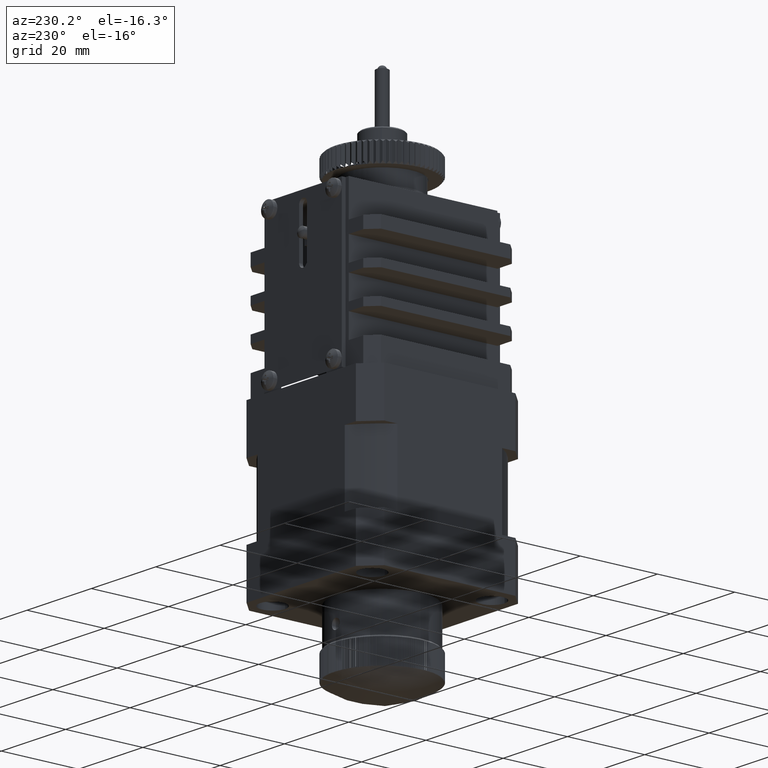
[diagram: clean part render]
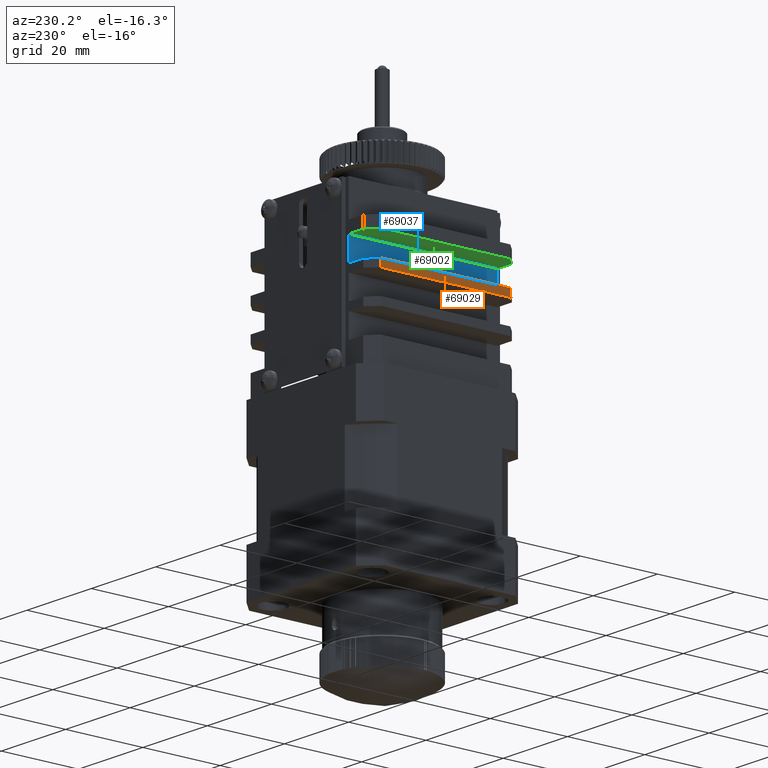
[diagram: same view with three faces highlighted in distinct colors, each labeled with its STEP entity id]
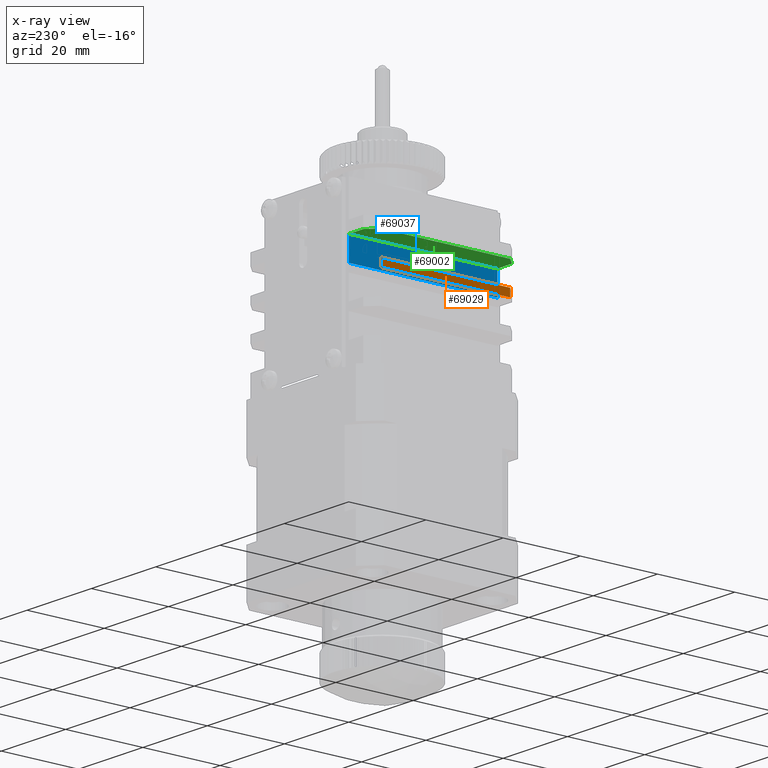
[diagram: x-ray of the same camera — body ghosted, the three highlighted faces saturated]
A machine part, auxiliary view with three faces highlighted in distinct colors.
The next image is the same camera in x-ray (body ghosted, the three faces saturated) — at least one of them is partly hidden behind the body in this view.
Their STEP definitions:

[orange] entity #69029 — the highlighted planar face has unit normal (1, 0, -0).
#68939 = ORIENTED_EDGE ( 'NONE', *, *, #68974, .T. ) ;
#68940 = ORIENTED_EDGE ( 'NONE', *, *, #68948, .T. ) ;
#68942 = VERTEX_POINT ( 'NONE', #69530 ) ;
#68947 = VERTEX_POINT ( 'NONE', #69519 ) ;
#68948 = EDGE_CURVE ( 'NONE', #69051, #68942, #69515, .T. ) ;
#68949 = ORIENTED_EDGE ( 'NONE', *, *, #68961, .T. ) ;
#68952 = EDGE_CURVE ( 'NONE', #68954, #69051, #69506, .T. ) ;
#68954 = VERTEX_POINT ( 'NONE', #69639 ) ;
#68959 = EDGE_LOOP ( 'NONE', ( #68940, #68949, #68939, #69039 ) ) ;
#68961 = EDGE_CURVE ( 'NONE', #68942, #68947, #69631, .T. ) ;
#68974 = EDGE_CURVE ( 'NONE', #68947, #68954, #69685, .T. ) ;
#69029 = ADVANCED_FACE ( 'NONE', ( #70009 ), #70098, .F. ) ;
#69039 = ORIENTED_EDGE ( 'NONE', *, *, #68952, .T. ) ;
#69051 = VERTEX_POINT ( 'NONE', #70234 ) ;
#69503 = DIRECTION ( 'NONE',  ( -1.648888457230421600E-016, 1.000000000000000000, 1.224606353822377800E-016 ) ) ;
#69505 = CARTESIAN_POINT ( 'NONE',  ( -2.744648751455422500, -1.558363746537848100, 0.6096038195100800200 ) ) ;
#69506 = LINE ( 'NONE', #69505, #69641 ) ;
#69510 = DIRECTION ( 'NONE',  ( -2.550043509685906900E-016, 1.224606353822377300E-016, -1.000000000000000000 ) ) ;
#69512 = VECTOR ( 'NONE', #69510, 39.37007874015748100 ) ;
#69513 = CARTESIAN_POINT ( 'NONE',  ( -2.744648751455423000, -0.1410409118921788800, -0.2565379127733842800 ) ) ;
#69515 = LINE ( 'NONE', #69513, #69512 ) ;
#69519 = CARTESIAN_POINT ( 'NONE',  ( -2.744648751455423000, -1.459938549687454400, 0.5308636620297649800 ) ) ;
#69530 = CARTESIAN_POINT ( 'NONE',  ( -2.744648751455423000, -0.1410409118921791500, 0.5308636620297652000 ) ) ;
#69627 = DIRECTION ( 'NONE',  ( 1.648888457230421600E-016, -1.000000000000000000, -1.224606353822377800E-016 ) ) ;
#69629 = VECTOR ( 'NONE', #69627, 39.37007874015748100 ) ;
#69630 = CARTESIAN_POINT ( 'NONE',  ( -2.744648751455422500, -1.558363746537848100, 0.5308636620297649800 ) ) ;
#69631 = LINE ( 'NONE', #69630, #69629 ) ;
#69639 = CARTESIAN_POINT ( 'NONE',  ( -2.744648751455423000, -1.459938549687454400, 0.6096038195100800200 ) ) ;
#69641 = VECTOR ( 'NONE', #69503, 39.37007874015748100 ) ;
#69680 = DIRECTION ( 'NONE',  ( 2.550043509685906900E-016, -1.224606353822377300E-016, 1.000000000000000000 ) ) ;
#69681 = VECTOR ( 'NONE', #69680, 39.37007874015748100 ) ;
#69683 = CARTESIAN_POINT ( 'NONE',  ( -2.744648751455423000, -1.459938549687454400, -0.2565379127733847800 ) ) ;
#69685 = LINE ( 'NONE', #69683, #69681 ) ;
#70009 = FACE_OUTER_BOUND ( 'NONE', #68959, .T. ) ;
#70089 = DIRECTION ( 'NONE',  ( 1.648888457230421600E-016, -1.000000000000000000, -1.224606353822377800E-016 ) ) ;
#70090 = DIRECTION ( 'NONE',  ( 1.000000000000000000, 1.648888457230421900E-016, -2.550043509685906400E-016 ) ) ;
#70092 = CARTESIAN_POINT ( 'NONE',  ( -2.744648751455423000, -1.558363746537847900, -0.2565379127733847800 ) ) ;
#70093 = AXIS2_PLACEMENT_3D ( 'NONE', #70092, #70090, #70089 ) ;
#70098 = PLANE ( 'NONE',  #70093 ) ;
#70234 = CARTESIAN_POINT ( 'NONE',  ( -2.744648751455423000, -0.1410409118921791500, 0.6096038195100800200 ) ) ;

[blue] entity #69037 — the highlighted planar face has unit normal (1, 0, -0).
#68907 = EDGE_CURVE ( 'NONE', #68908, #68915, #69498, .T. ) ;
#68908 = VERTEX_POINT ( 'NONE', #69490 ) ;
#68915 = VERTEX_POINT ( 'NONE', #69475 ) ;
#68938 = VERTEX_POINT ( 'NONE', #69532 ) ;
#68955 = ORIENTED_EDGE ( 'NONE', *, *, #69027, .T. ) ;
#68956 = VERTEX_POINT ( 'NONE', #69636 ) ;
#68966 = ORIENTED_EDGE ( 'NONE', *, *, #68968, .F. ) ;
#68968 = EDGE_CURVE ( 'NONE', #68908, #68938, #69612, .T. ) ;
#68988 = EDGE_LOOP ( 'NONE', ( #68955, #69040, #68966, #69059 ) ) ;
#69027 = EDGE_CURVE ( 'NONE', #68915, #68956, #70017, .T. ) ;
#69037 = ADVANCED_FACE ( 'NONE', ( #70063 ), #70148, .F. ) ;
#69040 = ORIENTED_EDGE ( 'NONE', *, *, #69042, .F. ) ;
#69042 = EDGE_CURVE ( 'NONE', #68938, #68956, #70133, .T. ) ;
#69059 = ORIENTED_EDGE ( 'NONE', *, *, #68907, .T. ) ;
#69475 = CARTESIAN_POINT ( 'NONE',  ( -2.469058200274320200, -0.04261571504178535800, 0.8458242919510251500 ) ) ;
#69490 = CARTESIAN_POINT ( 'NONE',  ( -2.469058200274319800, -1.558363746537848100, 0.8458242919510248200 ) ) ;
#69492 = DIRECTION ( 'NONE',  ( -2.550043509685905900E-016, 1.000000000000000000, 1.224606353822378000E-016 ) ) ;
#69494 = VECTOR ( 'NONE', #69492, 39.37007874015748100 ) ;
#69496 = CARTESIAN_POINT ( 'NONE',  ( -2.469058200274319800, -1.558363746537848100, 0.8458242919510248200 ) ) ;
#69498 = LINE ( 'NONE', #69496, #69494 ) ;
#69532 = CARTESIAN_POINT ( 'NONE',  ( -2.469058200274319800, -1.558363746537847900, 0.6096038195100800200 ) ) ;
#69605 = DIRECTION ( 'NONE',  ( -2.550043509685906900E-016, 1.224606353822377300E-016, -1.000000000000000000 ) ) ;
#69607 = VECTOR ( 'NONE', #69605, 39.37007874015748100 ) ;
#69609 = CARTESIAN_POINT ( 'NONE',  ( -2.469058200274319800, -1.558363746537848100, 0.8458242919510248200 ) ) ;
#69612 = LINE ( 'NONE', #69609, #69607 ) ;
#69636 = CARTESIAN_POINT ( 'NONE',  ( -2.469058200274320200, -0.04261571504178508100, 0.6096038195100800200 ) ) ;
#70011 = DIRECTION ( 'NONE',  ( -2.550043509685906900E-016, 1.224606353822377300E-016, -1.000000000000000000 ) ) ;
#70013 = VECTOR ( 'NONE', #70011, 39.37007874015748100 ) ;
#70015 = CARTESIAN_POINT ( 'NONE',  ( -2.469058200274320200, -0.04261571504178535800, 0.8458242919510251500 ) ) ;
#70017 = LINE ( 'NONE', #70015, #70013 ) ;
#70063 = FACE_OUTER_BOUND ( 'NONE', #68988, .T. ) ;
#70128 = DIRECTION ( 'NONE',  ( -2.550043509685905900E-016, 1.000000000000000000, 1.224606353822378000E-016 ) ) ;
#70130 = VECTOR ( 'NONE', #70128, 39.37007874015748100 ) ;
#70132 = CARTESIAN_POINT ( 'NONE',  ( -2.469058200274319800, -1.558363746537847900, 0.6096038195100800200 ) ) ;
#70133 = LINE ( 'NONE', #70132, #70130 ) ;
#70138 = DIRECTION ( 'NONE',  ( 2.550043509685905900E-016, -1.000000000000000000, -1.224606353822378000E-016 ) ) ;
#70140 = DIRECTION ( 'NONE',  ( 1.000000000000000000, 2.550043509685906400E-016, -2.550043509685906400E-016 ) ) ;
#70142 = CARTESIAN_POINT ( 'NONE',  ( -2.469058200274319800, -1.558363746537848100, 0.8458242919510248200 ) ) ;
#70143 = AXIS2_PLACEMENT_3D ( 'NONE', #70142, #70140, #70138 ) ;
#70148 = PLANE ( 'NONE',  #70143 ) ;

[green] entity #69002 — the highlighted planar face has unit normal (0, -0, 1).
#68812 = EDGE_CURVE ( 'NONE', #68903, #68884, #68995, .T. ) ;
#68871 = EDGE_LOOP ( 'NONE', ( #68895, #68912, #68998, #68909, #68999, #69046 ) ) ;
#68884 = VERTEX_POINT ( 'NONE', #69409 ) ;
#68889 = EDGE_CURVE ( 'NONE', #68903, #68891, #69395, .T. ) ;
#68891 = VERTEX_POINT ( 'NONE', #69388 ) ;
#68895 = ORIENTED_EDGE ( 'NONE', *, *, #68889, .T. ) ;
#68903 = VERTEX_POINT ( 'NONE', #69356 ) ;
#68907 = EDGE_CURVE ( 'NONE', #68908, #68915, #69498, .T. ) ;
#68908 = VERTEX_POINT ( 'NONE', #69490 ) ;
#68909 = ORIENTED_EDGE ( 'NONE', *, *, #68919, .F. ) ;
#68912 = ORIENTED_EDGE ( 'NONE', *, *, #68913, .T. ) ;
#68913 = EDGE_CURVE ( 'NONE', #68891, #68915, #69482, .T. ) ;
#68915 = VERTEX_POINT ( 'NONE', #69475 ) ;
#68918 = VERTEX_POINT ( 'NONE', #69473 ) ;
#68919 = EDGE_CURVE ( 'NONE', #68918, #68908, #69467, .T. ) ;
#68990 = DIRECTION ( 'NONE',  ( 1.648888457230421600E-016, -1.000000000000000000, -1.224606353822377800E-016 ) ) ;
#68992 = VECTOR ( 'NONE', #68990, 39.37007874015748100 ) ;
#68993 = CARTESIAN_POINT ( 'NONE',  ( -2.744648751455422500, -1.558363746537848100, 0.8458242919510251500 ) ) ;
#68995 = LINE ( 'NONE', #68993, #68992 ) ;
#68998 = ORIENTED_EDGE ( 'NONE', *, *, #68907, .F. ) ;
#68999 = ORIENTED_EDGE ( 'NONE', *, *, #69000, .T. ) ;
#69000 = EDGE_CURVE ( 'NONE', #68918, #68884, #69823, .T. ) ;
#69002 = ADVANCED_FACE ( 'NONE', ( #69818 ), #69901, .F. ) ;
#69046 = ORIENTED_EDGE ( 'NONE', *, *, #68812, .F. ) ;
#69356 = CARTESIAN_POINT ( 'NONE',  ( -2.744648751455423000, -0.1410409118921791500, 0.8458242919510251500 ) ) ;
#69388 = CARTESIAN_POINT ( 'NONE',  ( -2.646223554605029000, -0.04261571504178535800, 0.8458242919510251500 ) ) ;
#69389 = DIRECTION ( 'NONE',  ( 0.7071067811865468000, 0.7071067811865482400, -9.372256009477099300E-017 ) ) ;
#69391 = VECTOR ( 'NONE', #69389, 39.37007874015748100 ) ;
#69393 = CARTESIAN_POINT ( 'NONE',  ( -2.646223554605029000, -0.04261571504178535800, 0.8458242919510251500 ) ) ;
#69395 = LINE ( 'NONE', #69393, #69391 ) ;
#69409 = CARTESIAN_POINT ( 'NONE',  ( -2.744648751455423000, -1.459938549687454400, 0.8458242919510251500 ) ) ;
#69462 = DIRECTION ( 'NONE',  ( 1.000000000000000000, 2.550043509685906400E-016, -2.550043509685906400E-016 ) ) ;
#69463 = VECTOR ( 'NONE', #69462, 39.37007874015748100 ) ;
#69465 = CARTESIAN_POINT ( 'NONE',  ( -3.059893180237313300, -1.558363746537848400, 0.8458242919510251500 ) ) ;
#69467 = LINE ( 'NONE', #69465, #69463 ) ;
#69473 = CARTESIAN_POINT ( 'NONE',  ( -2.646223554605028100, -1.558363746537848100, 0.8458242919510248200 ) ) ;
#69475 = CARTESIAN_POINT ( 'NONE',  ( -2.469058200274320200, -0.04261571504178535800, 0.8458242919510251500 ) ) ;
#69478 = DIRECTION ( 'NONE',  ( 1.000000000000000000, 2.550043509685906400E-016, -2.550043509685906400E-016 ) ) ;
#69479 = VECTOR ( 'NONE', #69478, 39.37007874015748100 ) ;
#69481 = CARTESIAN_POINT ( 'NONE',  ( -3.059893180237313300, -0.04261571504178562900, 0.8458242919510251500 ) ) ;
#69482 = LINE ( 'NONE', #69481, #69479 ) ;
#69490 = CARTESIAN_POINT ( 'NONE',  ( -2.469058200274319800, -1.558363746537848100, 0.8458242919510248200 ) ) ;
#69492 = DIRECTION ( 'NONE',  ( -2.550043509685905900E-016, 1.000000000000000000, 1.224606353822378000E-016 ) ) ;
#69494 = VECTOR ( 'NONE', #69492, 39.37007874015748100 ) ;
#69496 = CARTESIAN_POINT ( 'NONE',  ( -2.469058200274319800, -1.558363746537848100, 0.8458242919510248200 ) ) ;
#69498 = LINE ( 'NONE', #69496, #69494 ) ;
#69818 = FACE_OUTER_BOUND ( 'NONE', #68871, .T. ) ;
#69819 = DIRECTION ( 'NONE',  ( -0.7071067811865492400, 0.7071067811865458000, 2.669080515091585900E-016 ) ) ;
#69820 = VECTOR ( 'NONE', #69819, 39.37007874015748100 ) ;
#69822 = CARTESIAN_POINT ( 'NONE',  ( -2.744648751455422500, -1.459938549687454600, 0.8458242919510251500 ) ) ;
#69823 = LINE ( 'NONE', #69822, #69820 ) ;
#69893 = DIRECTION ( 'NONE',  ( 2.550043509685905900E-016, -1.000000000000000000, -1.224606353822378000E-016 ) ) ;
#69895 = DIRECTION ( 'NONE',  ( 2.550043509685906900E-016, -1.224606353822377300E-016, 1.000000000000000000 ) ) ;
#69897 = CARTESIAN_POINT ( 'NONE',  ( -3.059893180237313300, -1.558363746537848400, 0.8458242919510251500 ) ) ;
#69898 = AXIS2_PLACEMENT_3D ( 'NONE', #69897, #69895, #69893 ) ;
#69901 = PLANE ( 'NONE',  #69898 ) ;